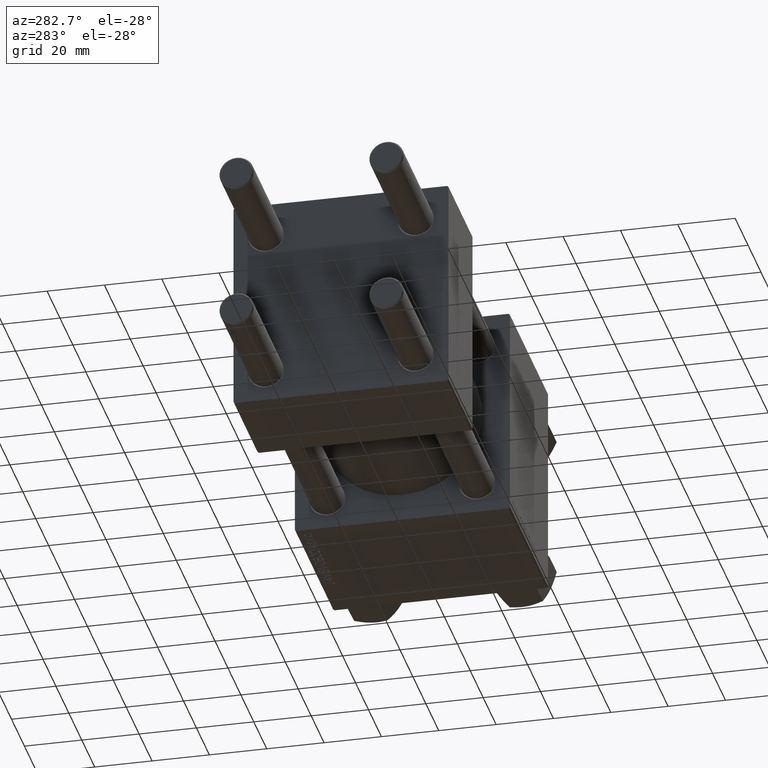
[diagram: clean part render]
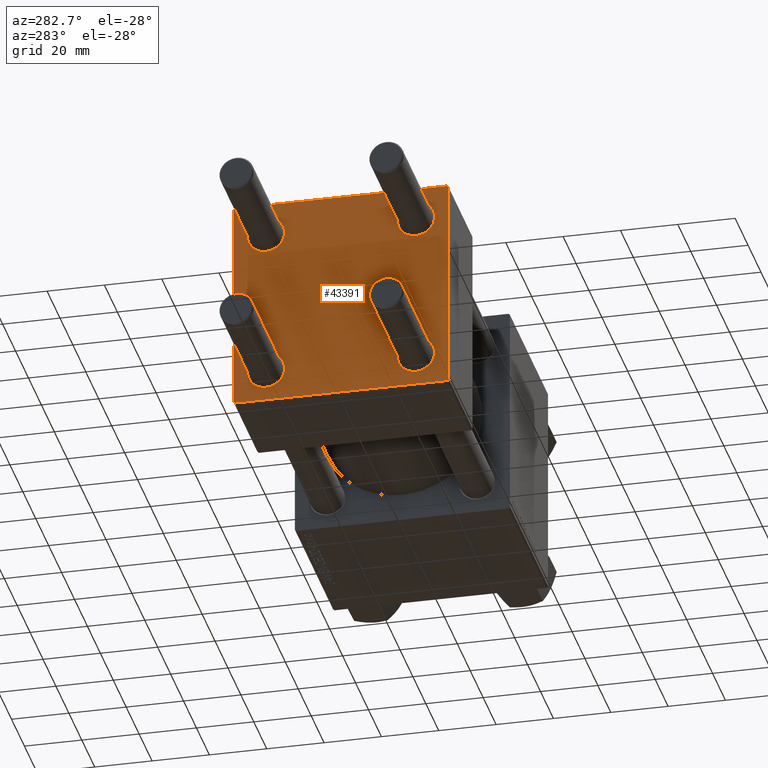
[diagram: same view with one face highlighted and labeled with its STEP entity id]
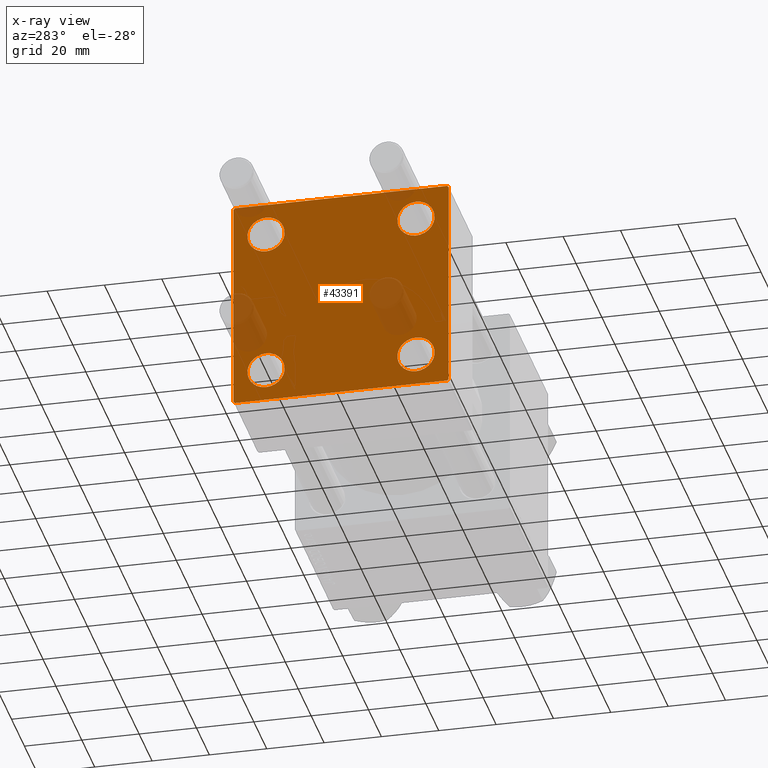
[diagram: x-ray of the same camera — body ghosted, the highlighted face saturated]
A machine part, auxiliary view. The second image highlights one B-rep face of the part: STEP entity #43391.
The next image is the same camera in x-ray: the body ghosted, the highlighted face saturated — about 10% of this face is hidden behind the body in this view.
In plain terms, the highlighted planar face has unit normal (-1, 0, 0).
Its self-contained STEP definition (entity closure, byte-faithful):
#108 = CARTESIAN_POINT ( 'NONE',  ( 0.000000000000000000, 26.14999999999999858, 26.15000000000000213 ) ) ;
#518 = VERTEX_POINT ( 'NONE', #47294 ) ;
#666 = AXIS2_PLACEMENT_3D ( 'NONE', #49582, #18441, #22739 ) ;
#802 = VERTEX_POINT ( 'NONE', #16356 ) ;
#1039 = VERTEX_POINT ( 'NONE', #46165 ) ;
#1323 = EDGE_LOOP ( 'NONE', ( #37102, #41273 ) ) ;
#1349 = DIRECTION ( 'NONE',  ( 0.000000000000000000, 0.7071067811865474617, -0.7071067811865474617 ) ) ;
#1504 = VECTOR ( 'NONE', #13286, 1000.000000000000000 ) ;
#1643 = CARTESIAN_POINT ( 'NONE',  ( -0.000000000000000000, -37.25000000000000000, 37.25000000000000000 ) ) ;
#1846 = DIRECTION ( 'NONE',  ( 0.000000000000000000, 0.000000000000000000, 1.000000000000000000 ) ) ;
#2131 = LINE ( 'NONE', #1643, #12308 ) ;
#2446 = AXIS2_PLACEMENT_3D ( 'NONE', #6114, #33430, #37719 ) ;
#2865 = VECTOR ( 'NONE', #35337, 1000.000000000000000 ) ;
#3219 = DIRECTION ( 'NONE',  ( 0.000000000000000000, 0.000000000000000000, 1.000000000000000000 ) ) ;
#3638 = CARTESIAN_POINT ( 'NONE',  ( 0.000000000000000000, 26.14999999999999858, -19.64999999999998792 ) ) ;
#3708 = CARTESIAN_POINT ( 'NONE',  ( 0.000000000000000000, 26.14999999999999858, -26.15000000000000213 ) ) ;
#4413 = CARTESIAN_POINT ( 'NONE',  ( 0.000000000000000000, 26.14999999999999858, 26.15000000000000213 ) ) ;
#4990 = VERTEX_POINT ( 'NONE', #48757 ) ;
#5151 = CARTESIAN_POINT ( 'NONE',  ( 0.000000000000000000, 37.24999999999999289, 37.24999999999999289 ) ) ;
#6061 = EDGE_CURVE ( 'NONE', #14508, #4990, #2131, .T. ) ;
#6114 = CARTESIAN_POINT ( 'NONE',  ( 0.000000000000000000, 26.14999999999999858, -26.15000000000000213 ) ) ;
#6533 = VECTOR ( 'NONE', #43458, 1000.000000000000000 ) ;
#6809 = PLANE ( 'NONE',  #666 ) ;
#7089 = LINE ( 'NONE', #26079, #30201 ) ;
#7201 = VECTOR ( 'NONE', #1349, 1000.000000000000114 ) ;
#7565 = VECTOR ( 'NONE', #42620, 1000.000000000000114 ) ;
#7997 = DIRECTION ( 'NONE',  ( 1.000000000000000000, -0.000000000000000000, 0.000000000000000000 ) ) ;
#8160 = VERTEX_POINT ( 'NONE', #28526 ) ;
#8274 = CARTESIAN_POINT ( 'NONE',  ( 0.000000000000000000, 37.49999999999999289, -37.50000000000000000 ) ) ;
#8995 = LINE ( 'NONE', #47974, #1504 ) ;
#9330 = CARTESIAN_POINT ( 'NONE',  ( 0.000000000000000000, 26.14999999999999858, -32.65000000000001990 ) ) ;
#10362 = AXIS2_PLACEMENT_3D ( 'NONE', #4413, #38566, #46671 ) ;
#10651 = EDGE_CURVE ( 'NONE', #34137, #4990, #7089, .T. ) ;
#11116 = EDGE_CURVE ( 'NONE', #802, #25516, #48000, .T. ) ;
#12240 = DIRECTION ( 'NONE',  ( 1.000000000000000000, -0.000000000000000000, 0.000000000000000000 ) ) ;
#12303 = DIRECTION ( 'NONE',  ( 1.000000000000000000, -0.000000000000000000, 0.000000000000000000 ) ) ;
#12308 = VECTOR ( 'NONE', #21868, 1000.000000000000114 ) ;
#12959 = CIRCLE ( 'NONE', #2446, 6.500000000000015987 ) ;
#13021 = VERTEX_POINT ( 'NONE', #22939 ) ;
#13132 = EDGE_CURVE ( 'NONE', #28001, #33785, #32908, .T. ) ;
#13286 = DIRECTION ( 'NONE',  ( 0.000000000000000000, 0.000000000000000000, -1.000000000000000000 ) ) ;
#13471 = CARTESIAN_POINT ( 'NONE',  ( 0.000000000000000000, -26.14999999999999147, -26.15000000000000924 ) ) ;
#14423 = DIRECTION ( 'NONE',  ( 1.000000000000000000, -0.000000000000000000, 0.000000000000000000 ) ) ;
#14508 = VERTEX_POINT ( 'NONE', #38270 ) ;
#15166 = EDGE_LOOP ( 'NONE', ( #33994, #43179 ) ) ;
#15248 = AXIS2_PLACEMENT_3D ( 'NONE', #13471, #20337, #1846 ) ;
#16115 = ORIENTED_EDGE ( 'NONE', *, *, #20460, .T. ) ;
#16356 = CARTESIAN_POINT ( 'NONE',  ( 0.000000000000000000, 36.99999999999997868, -37.50000000000000000 ) ) ;
#16609 = ORIENTED_EDGE ( 'NONE', *, *, #47145, .T. ) ;
#16610 = DIRECTION ( 'NONE',  ( 0.000000000000000000, 0.000000000000000000, 1.000000000000000000 ) ) ;
#16715 = EDGE_LOOP ( 'NONE', ( #37528, #34235 ) ) ;
#17482 = AXIS2_PLACEMENT_3D ( 'NONE', #108, #12240, #19845 ) ;
#17489 = VERTEX_POINT ( 'NONE', #24361 ) ;
#17531 = CARTESIAN_POINT ( 'NONE',  ( 0.000000000000000000, -26.14999999999999147, 26.15000000000000924 ) ) ;
#18198 = FACE_BOUND ( 'NONE', #24299, .T. ) ;
#18441 = DIRECTION ( 'NONE',  ( -1.000000000000000000, 0.000000000000000000, -0.000000000000000000 ) ) ;
#18873 = CIRCLE ( 'NONE', #20621, 6.500000000000023093 ) ;
#19142 = ORIENTED_EDGE ( 'NONE', *, *, #10651, .F. ) ;
#19260 = CIRCLE ( 'NONE', #10362, 6.500000000000023093 ) ;
#19457 = ORIENTED_EDGE ( 'NONE', *, *, #26325, .F. ) ;
#19845 = DIRECTION ( 'NONE',  ( 0.000000000000000000, 0.000000000000000000, 1.000000000000000000 ) ) ;
#19860 = CARTESIAN_POINT ( 'NONE',  ( 0.000000000000000000, 37.24999999999998579, -37.24999999999998579 ) ) ;
#19946 = AXIS2_PLACEMENT_3D ( 'NONE', #43732, #28048, #43474 ) ;
#20337 = DIRECTION ( 'NONE',  ( 1.000000000000000000, -0.000000000000000000, 0.000000000000000000 ) ) ;
#20460 = EDGE_CURVE ( 'NONE', #33785, #28001, #12959, .T. ) ;
#20621 = AXIS2_PLACEMENT_3D ( 'NONE', #17531, #12303, #16610 ) ;
#21868 = DIRECTION ( 'NONE',  ( -0.000000000000000000, 0.7071067811865474617, 0.7071067811865474617 ) ) ;
#22280 = DIRECTION ( 'NONE',  ( 0.000000000000000000, 0.000000000000000000, 1.000000000000000000 ) ) ;
#22739 = DIRECTION ( 'NONE',  ( -0.000000000000000000, 0.000000000000000000, 1.000000000000000000 ) ) ;
#22939 = CARTESIAN_POINT ( 'NONE',  ( 0.000000000000000000, -26.14999999999999147, -19.64999999999999503 ) ) ;
#23001 = CARTESIAN_POINT ( 'NONE',  ( 0.000000000000000000, -26.14999999999999147, 32.65000000000003411 ) ) ;
#24023 = AXIS2_PLACEMENT_3D ( 'NONE', #3708, #7997, #3219 ) ;
#24299 = EDGE_LOOP ( 'NONE', ( #37380, #16115 ) ) ;
#24361 = CARTESIAN_POINT ( 'NONE',  ( 0.000000000000000000, 26.14999999999999858, 19.64999999999998437 ) ) ;
#25516 = VERTEX_POINT ( 'NONE', #46738 ) ;
#25783 = FACE_BOUND ( 'NONE', #15166, .T. ) ;
#26079 = CARTESIAN_POINT ( 'NONE',  ( 0.000000000000000000, 37.49999999999999289, 37.50000000000000000 ) ) ;
#26325 = EDGE_CURVE ( 'NONE', #14508, #28350, #38165, .T. ) ;
#27192 = LINE ( 'NONE', #19860, #7565 ) ;
#27571 = VERTEX_POINT ( 'NONE', #33134 ) ;
#28001 = VERTEX_POINT ( 'NONE', #3638 ) ;
#28048 = DIRECTION ( 'NONE',  ( 1.000000000000000000, -0.000000000000000000, 0.000000000000000000 ) ) ;
#28350 = VERTEX_POINT ( 'NONE', #30664 ) ;
#28526 = CARTESIAN_POINT ( 'NONE',  ( 0.000000000000000000, -26.14999999999999147, -32.65000000000002700 ) ) ;
#28564 = LINE ( 'NONE', #43991, #37817 ) ;
#28787 = ORIENTED_EDGE ( 'NONE', *, *, #6061, .T. ) ;
#29127 = DIRECTION ( 'NONE',  ( 0.000000000000000000, -1.000000000000000000, -9.251858538542971581E-17 ) ) ;
#29312 = DIRECTION ( 'NONE',  ( 0.000000000000000000, -0.7071067811865524577, 0.7071067811865426878 ) ) ;
#30201 = VECTOR ( 'NONE', #29127, 1000.000000000000000 ) ;
#30664 = CARTESIAN_POINT ( 'NONE',  ( 0.000000000000000000, -37.50000000000000000, -37.00000000000003553 ) ) ;
#32305 = CARTESIAN_POINT ( 'NONE',  ( 0.000000000000000000, 36.99999999999999289, 37.50000000000000000 ) ) ;
#32908 = CIRCLE ( 'NONE', #24023, 6.500000000000015987 ) ;
#33134 = CARTESIAN_POINT ( 'NONE',  ( 0.000000000000000000, 37.49999999999999289, -36.99999999999998579 ) ) ;
#33313 = ORIENTED_EDGE ( 'NONE', *, *, #33502, .T. ) ;
#33430 = DIRECTION ( 'NONE',  ( 1.000000000000000000, -0.000000000000000000, 0.000000000000000000 ) ) ;
#33502 = EDGE_CURVE ( 'NONE', #27571, #802, #27192, .T. ) ;
#33507 = CARTESIAN_POINT ( 'NONE',  ( 0.000000000000000000, 37.49999999999999289, 37.00000000000000000 ) ) ;
#33785 = VERTEX_POINT ( 'NONE', #9330 ) ;
#33994 = ORIENTED_EDGE ( 'NONE', *, *, #36762, .T. ) ;
#34026 = EDGE_LOOP ( 'NONE', ( #36657, #33313, #45139, #16609, #19457, #28787, #19142, #35920 ) ) ;
#34137 = VERTEX_POINT ( 'NONE', #32305 ) ;
#34235 = ORIENTED_EDGE ( 'NONE', *, *, #45107, .T. ) ;
#35337 = DIRECTION ( 'NONE',  ( 0.000000000000000000, -1.000000000000000000, -9.251858538542972814E-17 ) ) ;
#35485 = VERTEX_POINT ( 'NONE', #33507 ) ;
#35616 = CARTESIAN_POINT ( 'NONE',  ( 0.000000000000000000, -37.50000000000000711, 37.49999999999999289 ) ) ;
#35920 = ORIENTED_EDGE ( 'NONE', *, *, #45111, .T. ) ;
#36369 = EDGE_CURVE ( 'NONE', #518, #39280, #18873, .T. ) ;
#36657 = ORIENTED_EDGE ( 'NONE', *, *, #44750, .T. ) ;
#36762 = EDGE_CURVE ( 'NONE', #39280, #518, #47178, .T. ) ;
#37061 = CIRCLE ( 'NONE', #15248, 6.500000000000015987 ) ;
#37102 = ORIENTED_EDGE ( 'NONE', *, *, #41037, .T. ) ;
#37380 = ORIENTED_EDGE ( 'NONE', *, *, #13132, .T. ) ;
#37420 = FACE_BOUND ( 'NONE', #1323, .T. ) ;
#37528 = ORIENTED_EDGE ( 'NONE', *, *, #40509, .T. ) ;
#37661 = FACE_OUTER_BOUND ( 'NONE', #34026, .T. ) ;
#37702 = CIRCLE ( 'NONE', #19946, 6.500000000000015987 ) ;
#37719 = DIRECTION ( 'NONE',  ( 0.000000000000000000, 0.000000000000000000, 1.000000000000000000 ) ) ;
#37817 = VECTOR ( 'NONE', #29312, 1000.000000000000000 ) ;
#38165 = LINE ( 'NONE', #35616, #6533 ) ;
#38270 = CARTESIAN_POINT ( 'NONE',  ( 0.000000000000000000, -37.50000000000000711, 36.99999999999999289 ) ) ;
#38566 = DIRECTION ( 'NONE',  ( 1.000000000000000000, -0.000000000000000000, 0.000000000000000000 ) ) ;
#39280 = VERTEX_POINT ( 'NONE', #23001 ) ;
#39918 = AXIS2_PLACEMENT_3D ( 'NONE', #41756, #14423, #22280 ) ;
#40143 = CIRCLE ( 'NONE', #17482, 6.500000000000023093 ) ;
#40509 = EDGE_CURVE ( 'NONE', #13021, #8160, #37702, .T. ) ;
#41037 = EDGE_CURVE ( 'NONE', #1039, #17489, #40143, .T. ) ;
#41273 = ORIENTED_EDGE ( 'NONE', *, *, #47495, .T. ) ;
#41756 = CARTESIAN_POINT ( 'NONE',  ( 0.000000000000000000, -26.14999999999999147, 26.15000000000000924 ) ) ;
#41969 = FACE_BOUND ( 'NONE', #16715, .T. ) ;
#42620 = DIRECTION ( 'NONE',  ( -0.000000000000000000, -0.7071067811865474617, -0.7071067811865474617 ) ) ;
#43179 = ORIENTED_EDGE ( 'NONE', *, *, #36369, .T. ) ;
#43391 = ADVANCED_FACE ( 'NONE', ( #25783, #41969, #18198, #37420, #37661 ), #6809, .T. ) ;
#43458 = DIRECTION ( 'NONE',  ( 0.000000000000000000, 9.251858538542971581E-17, -1.000000000000000000 ) ) ;
#43474 = DIRECTION ( 'NONE',  ( 0.000000000000000000, 0.000000000000000000, 1.000000000000000000 ) ) ;
#43732 = CARTESIAN_POINT ( 'NONE',  ( 0.000000000000000000, -26.14999999999999147, -26.15000000000000924 ) ) ;
#43991 = CARTESIAN_POINT ( 'NONE',  ( 0.000000000000000000, -37.24999999999975842, -37.25000000000027001 ) ) ;
#44750 = EDGE_CURVE ( 'NONE', #35485, #27571, #8995, .T. ) ;
#45107 = EDGE_CURVE ( 'NONE', #8160, #13021, #37061, .T. ) ;
#45111 = EDGE_CURVE ( 'NONE', #34137, #35485, #47166, .T. ) ;
#45139 = ORIENTED_EDGE ( 'NONE', *, *, #11116, .T. ) ;
#46165 = CARTESIAN_POINT ( 'NONE',  ( 0.000000000000000000, 26.14999999999999858, 32.65000000000002700 ) ) ;
#46671 = DIRECTION ( 'NONE',  ( 0.000000000000000000, 0.000000000000000000, 1.000000000000000000 ) ) ;
#46738 = CARTESIAN_POINT ( 'NONE',  ( 0.000000000000000000, -37.00000000000002132, -37.50000000000000711 ) ) ;
#47145 = EDGE_CURVE ( 'NONE', #25516, #28350, #28564, .T. ) ;
#47166 = LINE ( 'NONE', #5151, #7201 ) ;
#47178 = CIRCLE ( 'NONE', #39918, 6.500000000000023093 ) ;
#47294 = CARTESIAN_POINT ( 'NONE',  ( 0.000000000000000000, -26.14999999999999147, 19.64999999999999147 ) ) ;
#47495 = EDGE_CURVE ( 'NONE', #17489, #1039, #19260, .T. ) ;
#47974 = CARTESIAN_POINT ( 'NONE',  ( 0.000000000000000000, 37.49999999999999289, 37.50000000000000000 ) ) ;
#48000 = LINE ( 'NONE', #8274, #2865 ) ;
#48757 = CARTESIAN_POINT ( 'NONE',  ( 0.000000000000000000, -37.00000000000000711, 37.49999999999999289 ) ) ;
#49582 = CARTESIAN_POINT ( 'NONE',  ( 0.000000000000000000, 0.000000000000000000, 0.000000000000000000 ) ) ;